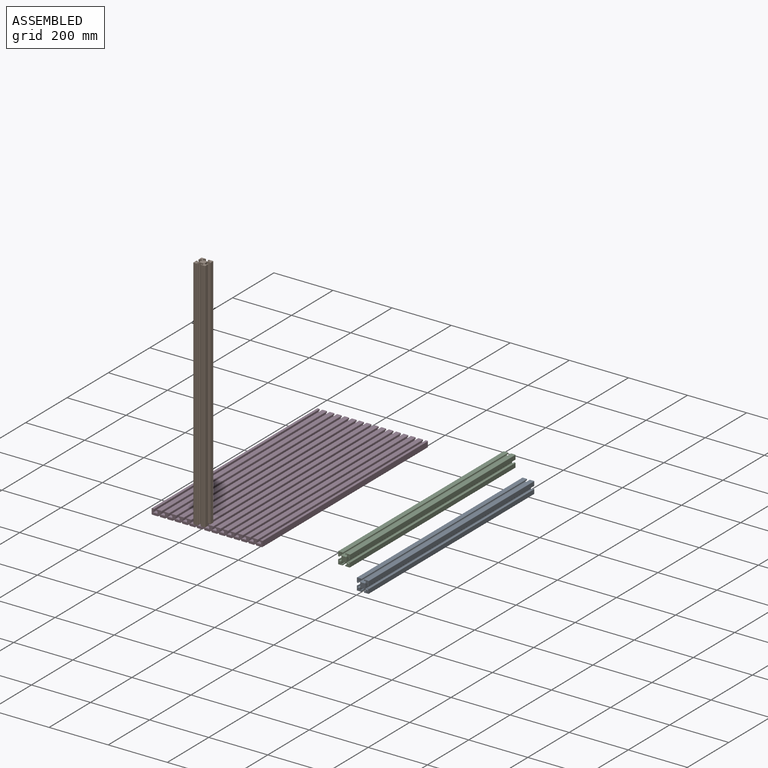
[diagram: assembled view]
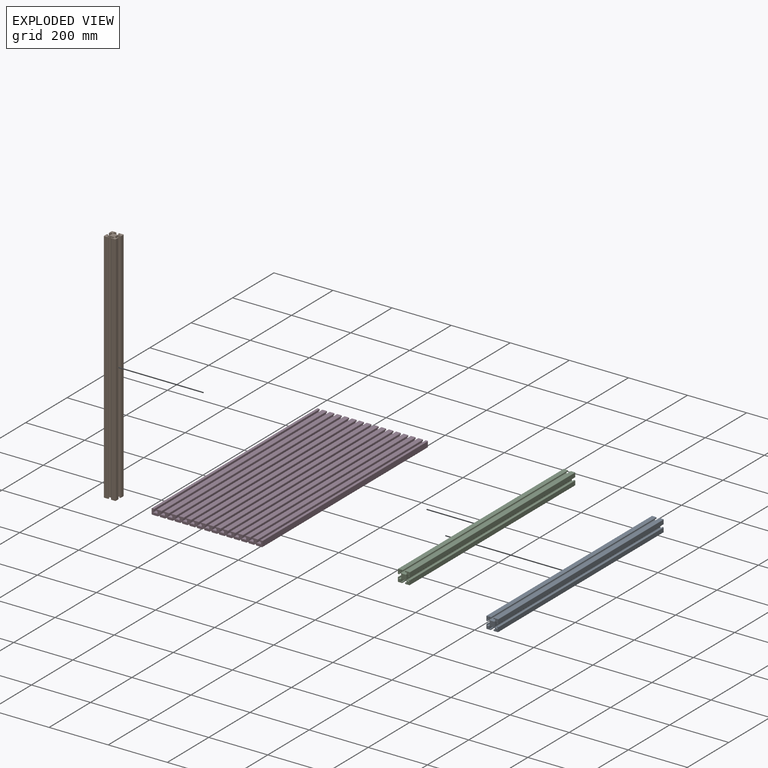
[diagram: exploded view]
GUIDED TOUR — MATED ASSEMBLY (Onshape document d3f55de6a1fc9f7a195c61f0, AutoMate assembly d3f55de6a1fc9f7a195c61f0_7cef2908c4491684f1a94280_d73506ea18576962724b9e15_default)

This assembly has 4 components, labeled P0..P3 below (a component is one placed occurrence of a part; the same part can appear more than once), held together by 1 mate. A mate is a constraint between two components; its type names the relative motion it leaves free:
  FASTENED — locks the two components together rigidly (no relative motion).
Axis/direction vectors are unit vectors and 'through' points are millimeter coordinates, both in the assembly's world frame.

MATES
  1. FASTENED "Fastened 1": P1 <-> P3, direction (0.000, 0.000, -1.000) through (-38.93, -798.97, 30.24) mm

ASSEMBLY ORDER
  1. P3 — the base component [order verified]
  2. P2 [order verified]
  3. P1 [order verified]
  4. P0 [order verified]
Order-tag legend:
  [order verified] — this step's position reverses a verified removal order: the component was checked to insert without passing through the ones already placed.

Of the 4 components, 1 carries the full construction recipe — the FeatureScript program that regenerates the part's solid from scratch; the rest are supplied as boundary geometry only.
Each toured component is shown spotlighted twice — in the assembled view, then in the exploded view, where a leader line traces a displaced component back to its assembled socket (saturated green if recipe-attached, orange if geometry-only; every other component desaturated gray) — followed by its recipe or geometry summary and the mates that hold it.
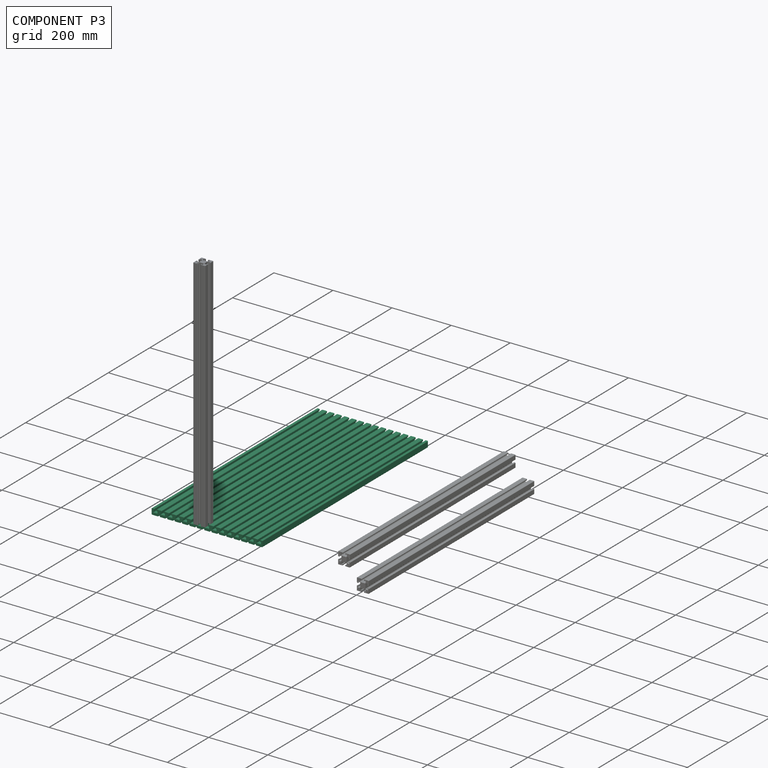
[diagram: component P3 — assembled]
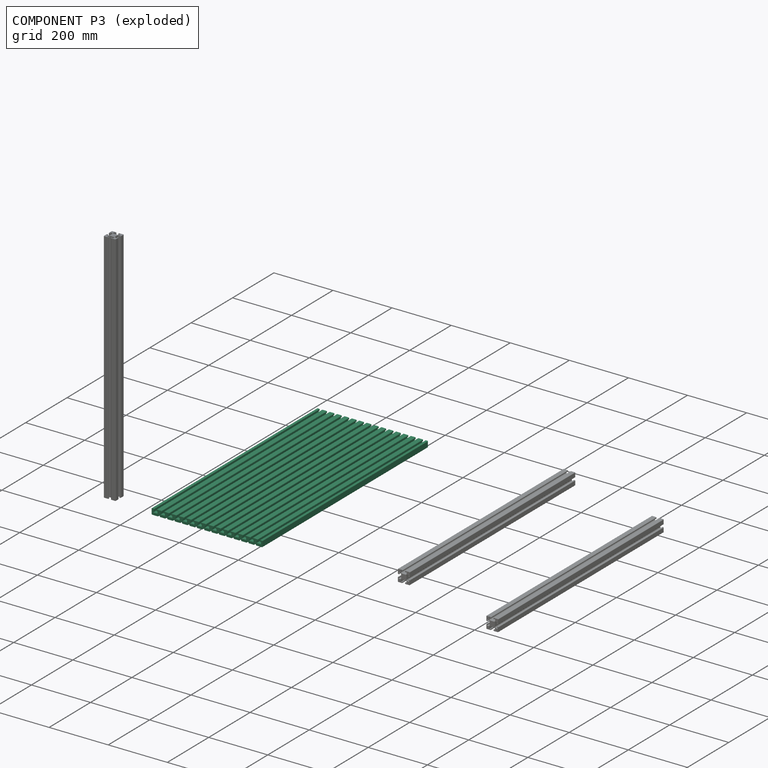
[diagram: component P3 — exploded]
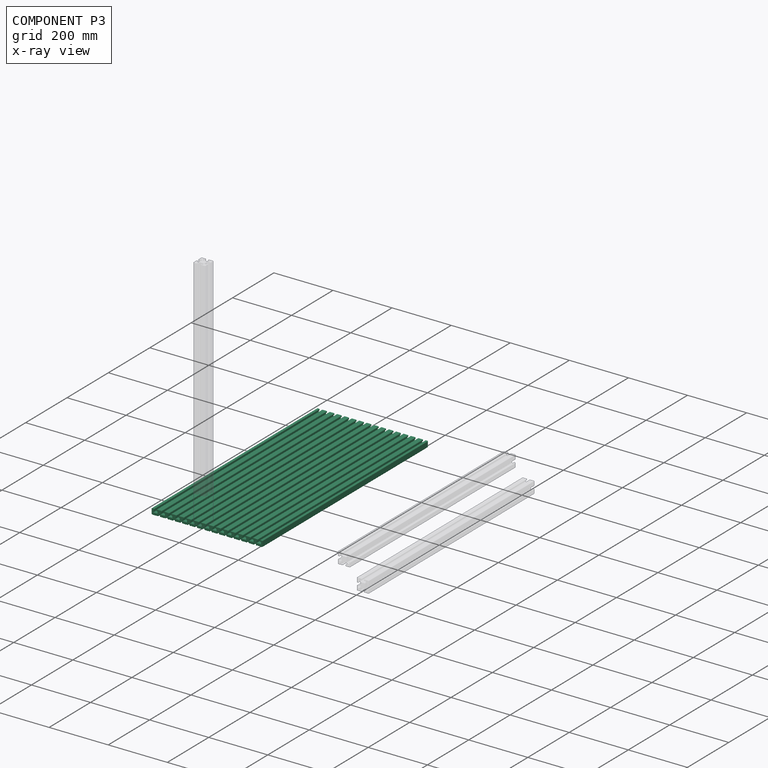
[diagram: component P3 — x-ray view]
COMPONENT P3 — recipe-attached (CADFS 00486400, mesh-verified: the recipe's output STEP matches this component's geometry to below the mesh-comparison resolution (tessellation chordal tolerance ~1.33 mm)).
Held by: FASTENED mate "Fastened 1" to P1.
Construction recipe (FeatureScript — the CAD program that rebuilds this solid; sketch coordinates are in the units given by the * unit suffixes, e.g. mm):

FeatureScript 1511;
import(path : "onshape/std/geometry.fs", version : "1511.0");
import(path : "onshape/std/common.fs", version : "1511.0");
const mm = millimeter;
const VERTEX = EntityType.VERTEX;
const EDGE = EntityType.EDGE;
const FACE = EntityType.FACE;
const BODY = EntityType.BODY;
function v(x, y){return vector(x, y);}
function OD(order){return orderDisambiguation(order);}
function OSD(set){return originalSetDisambiguation(set);}
function TD(topology){return topologyDisambiguation(topology);}
function TDD(query){return trueDependencyDisambiguation(query);}
function sQuery(a, b, c) {return sketchEntityQuery(a, b, c);}

annotation { "Feature Type Name" : "Feature", "Feature Type Description" : "" }
export const myFeature = defineFeature(function(context is Context, id is Id, definition is map)
    precondition{}
    {
        {
            var Q0;
            Q0=qCreatedBy(makeId("Front.planeOp"),FACE);
            var sketch = newSketch(context, id + "F0", { "sketchPlane" : qUnion([Q0])});
            skLineSegment(sketch, "E0", {"start": v(-186.5, -10) * mm, "end": v(-187.5, -9) * mm});
            skLineSegment(sketch, "E1", {"start": v(-187.5, -9) * mm, "end": v(-187.5, 9) * mm});
            skLineSegment(sketch, "E2", {"start": v(-187.5, 9) * mm, "end": v(-186.5, 10) * mm});
            skLineSegment(sketch, "E3", {"start": v(-186.5, 10) * mm, "end": v(-180.05, 10) * mm});
            skLineSegment(sketch, "E4", {"start": v(-179.05, 9) * mm, "end": v(-180.05, 10) * mm});
            skLineSegment(sketch, "E5", {"start": v(-179.05, 5) * mm, "end": v(-179.05, 9) * mm});
            skLineSegment(sketch, "E6", {"start": v(-182.25, 5) * mm, "end": v(-179.05, 5) * mm});
            skLineSegment(sketch, "E7", {"start": v(-182.25, -2) * mm, "end": v(-182.25, 5) * mm});
            skLineSegment(sketch, "E8", {"start": v(-167.75, -2) * mm, "end": v(-182.25, -2) * mm});
            skLineSegment(sketch, "E9", {"start": v(-167.75, 5) * mm, "end": v(-167.75, -2) * mm});
            skLineSegment(sketch, "E10", {"start": v(-170.95, 5) * mm, "end": v(-167.75, 5) * mm});
            skLineSegment(sketch, "E11", {"start": v(-170.95, 9) * mm, "end": v(-170.95, 5) * mm});
            skLineSegment(sketch, "E12", {"start": v(-169.95, 10) * mm, "end": v(-170.95, 9) * mm});
            skLineSegment(sketch, "E13", {"start": v(-169.95, 10) * mm, "end": v(-155.05, 10) * mm});
            skLineSegment(sketch, "E14", {"start": v(-154.05, 9) * mm, "end": v(-155.05, 10) * mm});
            skLineSegment(sketch, "E15", {"start": v(-154.05, 5) * mm, "end": v(-154.05, 9) * mm});
            skLineSegment(sketch, "E16", {"start": v(-157.25, 5) * mm, "end": v(-154.05, 5) * mm});
            skLineSegment(sketch, "E17", {"start": v(-157.25, -2) * mm, "end": v(-157.25, 5) * mm});
            skLineSegment(sketch, "E18", {"start": v(-142.75, -2) * mm, "end": v(-157.25, -2) * mm});
            skLineSegment(sketch, "E19", {"start": v(-142.75, 5) * mm, "end": v(-142.75, -2) * mm});
            skLineSegment(sketch, "E20", {"start": v(-145.95, 5) * mm, "end": v(-142.75, 5) * mm});
            skLineSegment(sketch, "E21", {"start": v(-145.95, 9) * mm, "end": v(-145.95, 5) * mm});
            skLineSegment(sketch, "E22", {"start": v(-144.95, 10) * mm, "end": v(-145.95, 9) * mm});
            skLineSegment(sketch, "E23", {"start": v(-144.95, 10) * mm, "end": v(-130.05, 10) * mm});
            skLineSegment(sketch, "E24", {"start": v(-129.05, 9) * mm, "end": v(-130.05, 10) * mm});
            skLineSegment(sketch, "E25", {"start": v(-129.05, 5) * mm, "end": v(-129.05, 9) * mm});
            skLineSegment(sketch, "E26", {"start": v(-132.25, 5) * mm, "end": v(-129.05, 5) * mm});
            skLineSegment(sketch, "E27", {"start": v(-132.25, -2) * mm, "end": v(-132.25, 5) * mm});
            skLineSegment(sketch, "E28", {"start": v(-117.75, -2) * mm, "end": v(-132.25, -2) * mm});
            skLineSegment(sketch, "E29", {"start": v(-117.75, 5) * mm, "end": v(-117.75, -2) * mm});
            skLineSegment(sketch, "E30", {"start": v(-120.95, 5) * mm, "end": v(-117.75, 5) * mm});
            skLineSegment(sketch, "E31", {"start": v(-120.95, 9) * mm, "end": v(-120.95, 5) * mm});
            skLineSegment(sketch, "E32", {"start": v(-119.95, 10) * mm, "end": v(-120.95, 9) * mm});
            skLineSegment(sketch, "E33", {"start": v(-119.95, 10) * mm, "end": v(-105.05, 10) * mm});
            skLineSegment(sketch, "E34", {"start": v(-104.05, 9) * mm, "end": v(-105.05, 10) * mm});
            skLineSegment(sketch, "E35", {"start": v(-104.05, 5) * mm, "end": v(-104.05, 9) * mm});
            skLineSegment(sketch, "E36", {"start": v(-107.25, 5) * mm, "end": v(-104.05, 5) * mm});
            skLineSegment(sketch, "E37", {"start": v(-107.25, -2) * mm, "end": v(-107.25, 5) * mm});
            skLineSegment(sketch, "E38", {"start": v(-92.75, -2) * mm, "end": v(-107.25, -2) * mm});
            skLineSegment(sketch, "E39", {"start": v(-92.75, 5) * mm, "end": v(-92.75, -2) * mm});
            skLineSegment(sketch, "E40", {"start": v(-95.95, 5) * mm, "end": v(-92.75, 5) * mm});
            skLineSegment(sketch, "E41", {"start": v(-95.95, 9) * mm, "end": v(-95.95, 5) * mm});
            skLineSegment(sketch, "E42", {"start": v(-94.95, 10) * mm, "end": v(-95.95, 9) * mm});
            skLineSegment(sketch, "E43", {"start": v(-94.95, 10) * mm, "end": v(-80.05, 10) * mm});
            skLineSegment(sketch, "E44", {"start": v(-79.05, 9) * mm, "end": v(-80.05, 10) * mm});
            skLineSegment(sketch, "E45", {"start": v(-79.05, 5) * mm, "end": v(-79.05, 9) * mm});
            skLineSegment(sketch, "E46", {"start": v(-82.25, 5) * mm, "end": v(-79.05, 5) * mm});
            skLineSegment(sketch, "E47", {"start": v(-82.25, -2) * mm, "end": v(-82.25, 5) * mm});
            skLineSegment(sketch, "E48", {"start": v(-67.75, -2) * mm, "end": v(-82.25, -2) * mm});
            skLineSegment(sketch, "E49", {"start": v(-67.75, 5) * mm, "end": v(-67.75, -2) * mm});
            skLineSegment(sketch, "E50", {"start": v(-70.95, 5) * mm, "end": v(-67.75, 5) * mm});
            skLineSegment(sketch, "E51", {"start": v(-70.95, 9) * mm, "end": v(-70.95, 5) * mm});
            skLineSegment(sketch, "E52", {"start": v(-69.95, 10) * mm, "end": v(-70.95, 9) * mm});
            skLineSegment(sketch, "E53", {"start": v(-69.95, 10) * mm, "end": v(-55.05, 10) * mm});
            skLineSegment(sketch, "E54", {"start": v(-54.05, 9) * mm, "end": v(-55.05, 10) * mm});
            skLineSegment(sketch, "E55", {"start": v(-54.05, 5) * mm, "end": v(-54.05, 9) * mm});
            skLineSegment(sketch, "E56", {"start": v(-57.25, 5) * mm, "end": v(-54.05, 5) * mm});
            skLineSegment(sketch, "E57", {"start": v(-57.25, -2) * mm, "end": v(-57.25, 5) * mm});
            skLineSegment(sketch, "E58", {"start": v(-42.75, -2) * mm, "end": v(-57.25, -2) * mm});
            skLineSegment(sketch, "E59", {"start": v(-42.75, 5) * mm, "end": v(-42.75, -2) * mm});
            skLineSegment(sketch, "E60", {"start": v(-45.95, 5) * mm, "end": v(-42.75, 5) * mm});
            skLineSegment(sketch, "E61", {"start": v(-45.95, 9) * mm, "end": v(-45.95, 5) * mm});
            skLineSegment(sketch, "E62", {"start": v(-44.95, 10) * mm, "end": v(-45.95, 9) * mm});
            skLineSegment(sketch, "E63", {"start": v(-44.95, 10) * mm, "end": v(-30.05, 10) * mm});
            skLineSegment(sketch, "E64", {"start": v(-29.05, 9) * mm, "end": v(-30.05, 10) * mm});
            skLineSegment(sketch, "E65", {"start": v(-32.25, 5) * mm, "end": v(-29.05, 5) * mm});
            skLineSegment(sketch, "E66", {"start": v(-32.25, -2) * mm, "end": v(-32.25, 5) * mm});
            skLineSegment(sketch, "E67", {"start": v(-17.75, -2) * mm, "end": v(-32.25, -2) * mm});
            skLineSegment(sketch, "E68", {"start": v(-17.75, 5) * mm, "end": v(-17.75, -2) * mm});
            skLineSegment(sketch, "E69", {"start": v(-20.95, 5) * mm, "end": v(-17.75, 5) * mm});
            skLineSegment(sketch, "E70", {"start": v(-20.95, 9) * mm, "end": v(-20.95, 5) * mm});
            skLineSegment(sketch, "E71", {"start": v(-19.95, 10) * mm, "end": v(-20.95, 9) * mm});
            skLineSegment(sketch, "E72", {"start": v(-19.95, 10) * mm, "end": v(-5.05, 10) * mm});
            skLineSegment(sketch, "E73", {"start": v(-4.05, 9) * mm, "end": v(-5.05, 10) * mm});
            skLineSegment(sketch, "E74", {"start": v(-4.05, 5) * mm, "end": v(-4.05, 9) * mm});
            skLineSegment(sketch, "E75", {"start": v(-7.25, 5) * mm, "end": v(-4.05, 5) * mm});
            skLineSegment(sketch, "E76", {"start": v(-7.25, -2) * mm, "end": v(-7.25, 5) * mm});
            skLineSegment(sketch, "E77", {"start": v(7.25, -2) * mm, "end": v(-7.25, -2) * mm});
            skLineSegment(sketch, "E78", {"start": v(7.25, -2) * mm, "end": v(7.25, 5) * mm});
            skLineSegment(sketch, "E79", {"start": v(7.25, 5) * mm, "end": v(4.05, 5) * mm});
            skLineSegment(sketch, "E80", {"start": v(4.05, 5) * mm, "end": v(4.05, 9) * mm});
            skLineSegment(sketch, "E81", {"start": v(4.05, 9) * mm, "end": v(5.05, 10) * mm});
            skLineSegment(sketch, "E82", {"start": v(19.95, 10) * mm, "end": v(20.95, 9) * mm});
            skLineSegment(sketch, "E83", {"start": v(20.95, 9) * mm, "end": v(20.95, 5) * mm});
            skLineSegment(sketch, "E84", {"start": v(20.95, 5) * mm, "end": v(17.75, 5) * mm});
            skLineSegment(sketch, "E85", {"start": v(17.75, 5) * mm, "end": v(17.75, -2) * mm});
            skLineSegment(sketch, "E86", {"start": v(17.75, -2) * mm, "end": v(32.25, -2) * mm});
            skLineSegment(sketch, "E87", {"start": v(32.25, -2) * mm, "end": v(32.25, 5) * mm});
            skLineSegment(sketch, "E88", {"start": v(32.25, 5) * mm, "end": v(29.05, 5) * mm});
            skLineSegment(sketch, "E89", {"start": v(29.05, 5) * mm, "end": v(29.05, 9) * mm});
            skLineSegment(sketch, "E90", {"start": v(29.05, 9) * mm, "end": v(30.05, 10) * mm});
            skLineSegment(sketch, "E91", {"start": v(44.95, 10) * mm, "end": v(45.95, 9) * mm});
            skLineSegment(sketch, "E92", {"start": v(45.95, 9) * mm, "end": v(45.95, 5) * mm});
            skLineSegment(sketch, "E93", {"start": v(45.95, 5) * mm, "end": v(42.75, 5) * mm});
            skLineSegment(sketch, "E94", {"start": v(42.75, 5) * mm, "end": v(42.75, -2) * mm});
            skLineSegment(sketch, "E95", {"start": v(42.75, -2) * mm, "end": v(57.25, -2) * mm});
            skLineSegment(sketch, "E96", {"start": v(57.25, -2) * mm, "end": v(57.25, 5) * mm});
            skLineSegment(sketch, "E97", {"start": v(57.25, 5) * mm, "end": v(54.05, 5) * mm});
            skLineSegment(sketch, "E98", {"start": v(54.05, 5) * mm, "end": v(54.05, 9) * mm});
            skLineSegment(sketch, "E99", {"start": v(54.05, 9) * mm, "end": v(55.05, 10) * mm});
            skLineSegment(sketch, "E100", {"start": v(69.95, 10) * mm, "end": v(70.95, 9) * mm});
            skLineSegment(sketch, "E101", {"start": v(70.95, 9) * mm, "end": v(70.95, 5) * mm});
            skLineSegment(sketch, "E102", {"start": v(70.95, 5) * mm, "end": v(67.75, 5) * mm});
            skLineSegment(sketch, "E103", {"start": v(67.75, 5) * mm, "end": v(67.75, -2) * mm});
            skLineSegment(sketch, "E104", {"start": v(67.75, -2) * mm, "end": v(82.25, -2) * mm});
            skLineSegment(sketch, "E105", {"start": v(82.25, -2) * mm, "end": v(82.25, 5) * mm});
            skLineSegment(sketch, "E106", {"start": v(82.25, 5) * mm, "end": v(79.05, 5) * mm});
            skLineSegment(sketch, "E107", {"start": v(79.05, 5) * mm, "end": v(79.05, 9) * mm});
            skLineSegment(sketch, "E108", {"start": v(79.05, 9) * mm, "end": v(80.05, 10) * mm});
            skLineSegment(sketch, "E109", {"start": v(94.95, 10) * mm, "end": v(95.95, 9) * mm});
            skLineSegment(sketch, "E110", {"start": v(95.95, 9) * mm, "end": v(95.95, 5) * mm});
            skLineSegment(sketch, "E111", {"start": v(95.95, 5) * mm, "end": v(92.75, 5) * mm});
            skLineSegment(sketch, "E112", {"start": v(92.75, 5) * mm, "end": v(92.75, -2) * mm});
            skLineSegment(sketch, "E113", {"start": v(92.75, -2) * mm, "end": v(107.25, -2) * mm});
            skLineSegment(sketch, "E114", {"start": v(107.25, -2) * mm, "end": v(107.25, 5) * mm});
            skLineSegment(sketch, "E115", {"start": v(107.25, 5) * mm, "end": v(104.05, 5) * mm});
            skLineSegment(sketch, "E116", {"start": v(104.05, 5) * mm, "end": v(104.05, 9) * mm});
            skLineSegment(sketch, "E117", {"start": v(104.05, 9) * mm, "end": v(105.05, 10) * mm});
            skLineSegment(sketch, "E118", {"start": v(119.95, 10) * mm, "end": v(120.95, 9) * mm});
            skLineSegment(sketch, "E119", {"start": v(120.95, 9) * mm, "end": v(120.95, 5) * mm});
            skLineSegment(sketch, "E120", {"start": v(120.95, 5) * mm, "end": v(117.75, 5) * mm});
            skLineSegment(sketch, "E121", {"start": v(117.75, 5) * mm, "end": v(117.75, -2) * mm});
            skLineSegment(sketch, "E122", {"start": v(117.75, -2) * mm, "end": v(132.25, -2) * mm});
            skLineSegment(sketch, "E123", {"start": v(132.25, -2) * mm, "end": v(132.25, 5) * mm});
            skLineSegment(sketch, "E124", {"start": v(132.25, 5) * mm, "end": v(129.05, 5) * mm});
            skLineSegment(sketch, "E125", {"start": v(129.05, 5) * mm, "end": v(129.05, 9) * mm});
            skLineSegment(sketch, "E126", {"start": v(129.05, 9) * mm, "end": v(130.05, 10) * mm});
            skLineSegment(sketch, "E127", {"start": v(144.95, 10) * mm, "end": v(145.95, 9) * mm});
            skLineSegment(sketch, "E128", {"start": v(145.95, 9) * mm, "end": v(145.95, 5) * mm});
            skLineSegment(sketch, "E129", {"start": v(145.95, 5) * mm, "end": v(142.75, 5) * mm});
            skLineSegment(sketch, "E130", {"start": v(142.75, 5) * mm, "end": v(142.75, -2) * mm});
            skLineSegment(sketch, "E131", {"start": v(142.75, -2) * mm, "end": v(157.25, -2) * mm});
            skLineSegment(sketch, "E132", {"start": v(157.25, -2) * mm, "end": v(157.25, 5) * mm});
            skLineSegment(sketch, "E133", {"start": v(157.25, 5) * mm, "end": v(154.05, 5) * mm});
            skLineSegment(sketch, "E134", {"start": v(154.05, 5) * mm, "end": v(154.05, 9) * mm});
            skLineSegment(sketch, "E135", {"start": v(154.05, 9) * mm, "end": v(155.05, 10) * mm});
            skLineSegment(sketch, "E136", {"start": v(169.95, 10) * mm, "end": v(170.95, 9) * mm});
            skLineSegment(sketch, "E137", {"start": v(170.95, 9) * mm, "end": v(170.95, 5) * mm});
            skLineSegment(sketch, "E138", {"start": v(170.95, 5) * mm, "end": v(167.75, 5) * mm});
            skLineSegment(sketch, "E139", {"start": v(167.75, 5) * mm, "end": v(167.75, -2) * mm});
            skLineSegment(sketch, "E140", {"start": v(167.75, -2) * mm, "end": v(182.25, -2) * mm});
            skLineSegment(sketch, "E141", {"start": v(182.25, -2) * mm, "end": v(182.25, 5) * mm});
            skLineSegment(sketch, "E142", {"start": v(182.25, 5) * mm, "end": v(179.05, 5) * mm});
            skLineSegment(sketch, "E143", {"start": v(179.05, 5) * mm, "end": v(179.05, 9) * mm});
            skLineSegment(sketch, "E144", {"start": v(179.05, 9) * mm, "end": v(180.05, 10) * mm});
            skArc(sketch, "E145", {"start": v(165.87, -9.56) * mm, "mid": v(165.94, -9.79) * mm, "end": v(166.04, -10) * mm});
            skLineSegment(sketch, "E146", {"start": v(165.87, -9.56) * mm, "end": v(165.53, -7.94) * mm});
            skArc(sketch, "E147", {"start": v(165.53, -7.94) * mm, "mid": v(165, -7.08) * mm, "end": v(164.06, -6.75) * mm});
            skLineSegment(sketch, "E148", {"start": v(164.06, -6.75) * mm, "end": v(160.94, -6.75) * mm});
            skArc(sketch, "E149", {"start": v(160.94, -6.75) * mm, "mid": v(160, -7.08) * mm, "end": v(159.47, -7.94) * mm});
            skLineSegment(sketch, "E150", {"start": v(159.47, -7.94) * mm, "end": v(159.13, -9.56) * mm});
            skArc(sketch, "E151", {"start": v(158.96, -10) * mm, "mid": v(159.06, -9.79) * mm, "end": v(159.13, -9.56) * mm});
            skArc(sketch, "E152", {"start": v(140.87, -9.56) * mm, "mid": v(140.94, -9.79) * mm, "end": v(141.04, -10) * mm});
            skLineSegment(sketch, "E153", {"start": v(140.87, -9.56) * mm, "end": v(140.53, -7.94) * mm});
            skArc(sketch, "E154", {"start": v(140.53, -7.94) * mm, "mid": v(140, -7.08) * mm, "end": v(139.06, -6.75) * mm});
            skLineSegment(sketch, "E155", {"start": v(139.06, -6.75) * mm, "end": v(135.94, -6.75) * mm});
            skArc(sketch, "E156", {"start": v(135.94, -6.75) * mm, "mid": v(135, -7.08) * mm, "end": v(134.47, -7.94) * mm});
            skLineSegment(sketch, "E157", {"start": v(134.47, -7.94) * mm, "end": v(134.13, -9.56) * mm});
            skArc(sketch, "E158", {"start": v(133.96, -10) * mm, "mid": v(134.06, -9.79) * mm, "end": v(134.13, -9.56) * mm});
            skArc(sketch, "E159", {"start": v(115.87, -9.56) * mm, "mid": v(115.94, -9.79) * mm, "end": v(116.04, -10) * mm});
            skLineSegment(sketch, "E160", {"start": v(115.87, -9.56) * mm, "end": v(115.53, -7.94) * mm});
            skArc(sketch, "E161", {"start": v(115.53, -7.94) * mm, "mid": v(115, -7.08) * mm, "end": v(114.06, -6.75) * mm});
            skLineSegment(sketch, "E162", {"start": v(114.06, -6.75) * mm, "end": v(110.94, -6.75) * mm});
            skArc(sketch, "E163", {"start": v(110.94, -6.75) * mm, "mid": v(110, -7.08) * mm, "end": v(109.47, -7.94) * mm});
            skLineSegment(sketch, "E164", {"start": v(109.47, -7.94) * mm, "end": v(109.13, -9.56) * mm});
            skArc(sketch, "E165", {"start": v(108.96, -10) * mm, "mid": v(109.06, -9.79) * mm, "end": v(109.13, -9.56) * mm});
            skArc(sketch, "E166", {"start": v(90.87, -9.56) * mm, "mid": v(90.94, -9.79) * mm, "end": v(91.04, -10) * mm});
            skLineSegment(sketch, "E167", {"start": v(90.87, -9.56) * mm, "end": v(90.53, -7.94) * mm});
            skArc(sketch, "E168", {"start": v(90.53, -7.94) * mm, "mid": v(90, -7.08) * mm, "end": v(89.06, -6.75) * mm});
            skLineSegment(sketch, "E169", {"start": v(89.06, -6.75) * mm, "end": v(85.94, -6.75) * mm});
            skArc(sketch, "E170", {"start": v(85.94, -6.75) * mm, "mid": v(85, -7.08) * mm, "end": v(84.47, -7.94) * mm});
            skLineSegment(sketch, "E171", {"start": v(84.47, -7.94) * mm, "end": v(84.13, -9.56) * mm});
            skArc(sketch, "E172", {"start": v(83.96, -10) * mm, "mid": v(84.06, -9.79) * mm, "end": v(84.13, -9.56) * mm});
            skArc(sketch, "E173", {"start": v(65.87, -9.56) * mm, "mid": v(65.94, -9.79) * mm, "end": v(66.04, -10) * mm});
            skLineSegment(sketch, "E174", {"start": v(65.87, -9.56) * mm, "end": v(65.53, -7.94) * mm});
            skArc(sketch, "E175", {"start": v(65.53, -7.94) * mm, "mid": v(65, -7.08) * mm, "end": v(64.06, -6.75) * mm});
            skLineSegment(sketch, "E176", {"start": v(64.06, -6.75) * mm, "end": v(60.94, -6.75) * mm});
            skArc(sketch, "E177", {"start": v(60.94, -6.75) * mm, "mid": v(60, -7.08) * mm, "end": v(59.47, -7.94) * mm});
            skLineSegment(sketch, "E178", {"start": v(59.47, -7.94) * mm, "end": v(59.13, -9.56) * mm});
            skArc(sketch, "E179", {"start": v(58.96, -10) * mm, "mid": v(59.06, -9.79) * mm, "end": v(59.13, -9.56) * mm});
            skArc(sketch, "E180", {"start": v(40.87, -9.56) * mm, "mid": v(40.94, -9.79) * mm, "end": v(41.04, -10) * mm});
            skLineSegment(sketch, "E181", {"start": v(40.87, -9.56) * mm, "end": v(40.53, -7.94) * mm});
            skArc(sketch, "E182", {"start": v(40.53, -7.94) * mm, "mid": v(40, -7.08) * mm, "end": v(39.06, -6.75) * mm});
            skLineSegment(sketch, "E183", {"start": v(39.06, -6.75) * mm, "end": v(35.94, -6.75) * mm});
            skArc(sketch, "E184", {"start": v(35.94, -6.75) * mm, "mid": v(35, -7.08) * mm, "end": v(34.47, -7.94) * mm});
            skLineSegment(sketch, "E185", {"start": v(34.47, -7.94) * mm, "end": v(34.13, -9.56) * mm});
            skArc(sketch, "E186", {"start": v(33.96, -10) * mm, "mid": v(34.06, -9.79) * mm, "end": v(34.13, -9.56) * mm});
            skArc(sketch, "E187", {"start": v(15.87, -9.56) * mm, "mid": v(15.94, -9.79) * mm, "end": v(16.04, -10) * mm});
            skLineSegment(sketch, "E188", {"start": v(15.87, -9.56) * mm, "end": v(15.53, -7.94) * mm});
            skArc(sketch, "E189", {"start": v(15.53, -7.94) * mm, "mid": v(15, -7.08) * mm, "end": v(14.06, -6.75) * mm});
            skLineSegment(sketch, "E190", {"start": v(14.06, -6.75) * mm, "end": v(10.94, -6.75) * mm});
            skArc(sketch, "E191", {"start": v(10.94, -6.75) * mm, "mid": v(10, -7.08) * mm, "end": v(9.47, -7.94) * mm});
            skLineSegment(sketch, "E192", {"start": v(9.47, -7.94) * mm, "end": v(9.13, -9.56) * mm});
            skArc(sketch, "E193", {"start": v(8.96, -10) * mm, "mid": v(9.06, -9.79) * mm, "end": v(9.13, -9.56) * mm});
            skArc(sketch, "E194", {"start": v(-9.13, -9.56) * mm, "mid": v(-9.06, -9.79) * mm, "end": v(-8.96, -10) * mm});
            skLineSegment(sketch, "E195", {"start": v(-9.13, -9.56) * mm, "end": v(-9.47, -7.94) * mm});
            skArc(sketch, "E196", {"start": v(-9.47, -7.94) * mm, "mid": v(-10, -7.08) * mm, "end": v(-10.94, -6.75) * mm});
            skLineSegment(sketch, "E197", {"start": v(-10.94, -6.75) * mm, "end": v(-14.06, -6.75) * mm});
            skArc(sketch, "E198", {"start": v(-14.06, -6.75) * mm, "mid": v(-15, -7.08) * mm, "end": v(-15.53, -7.94) * mm});
            skLineSegment(sketch, "E199", {"start": v(-15.53, -7.94) * mm, "end": v(-15.87, -9.56) * mm});
            skArc(sketch, "E200", {"start": v(-16.04, -10) * mm, "mid": v(-15.94, -9.79) * mm, "end": v(-15.87, -9.56) * mm});
            skArc(sketch, "E201", {"start": v(-34.13, -9.56) * mm, "mid": v(-34.06, -9.79) * mm, "end": v(-33.96, -10) * mm});
            skLineSegment(sketch, "E202", {"start": v(-34.13, -9.56) * mm, "end": v(-34.47, -7.94) * mm});
            skArc(sketch, "E203", {"start": v(-34.47, -7.94) * mm, "mid": v(-35, -7.08) * mm, "end": v(-35.94, -6.75) * mm});
            skLineSegment(sketch, "E204", {"start": v(-35.94, -6.75) * mm, "end": v(-39.06, -6.75) * mm});
            skArc(sketch, "E205", {"start": v(-39.06, -6.75) * mm, "mid": v(-40, -7.08) * mm, "end": v(-40.53, -7.94) * mm});
            skLineSegment(sketch, "E206", {"start": v(-40.53, -7.94) * mm, "end": v(-40.87, -9.56) * mm});
            skArc(sketch, "E207", {"start": v(-41.04, -10) * mm, "mid": v(-40.94, -9.79) * mm, "end": v(-40.87, -9.56) * mm});
            skArc(sketch, "E208", {"start": v(-59.13, -9.56) * mm, "mid": v(-59.06, -9.79) * mm, "end": v(-58.96, -10) * mm});
            skLineSegment(sketch, "E209", {"start": v(-59.13, -9.56) * mm, "end": v(-59.47, -7.94) * mm});
            skArc(sketch, "E210", {"start": v(-59.47, -7.94) * mm, "mid": v(-60, -7.08) * mm, "end": v(-60.94, -6.75) * mm});
            skLineSegment(sketch, "E211", {"start": v(-60.94, -6.75) * mm, "end": v(-64.06, -6.75) * mm});
            skArc(sketch, "E212", {"start": v(-64.06, -6.75) * mm, "mid": v(-65, -7.08) * mm, "end": v(-65.53, -7.94) * mm});
            skLineSegment(sketch, "E213", {"start": v(-65.53, -7.94) * mm, "end": v(-65.87, -9.56) * mm});
            skArc(sketch, "E214", {"start": v(-66.04, -10) * mm, "mid": v(-65.94, -9.79) * mm, "end": v(-65.87, -9.56) * mm});
            skArc(sketch, "E215", {"start": v(-84.13, -9.56) * mm, "mid": v(-84.06, -9.79) * mm, "end": v(-83.96, -10) * mm});
            skLineSegment(sketch, "E216", {"start": v(-84.13, -9.56) * mm, "end": v(-84.47, -7.94) * mm});
            skArc(sketch, "E217", {"start": v(-84.47, -7.94) * mm, "mid": v(-85, -7.08) * mm, "end": v(-85.94, -6.75) * mm});
            skLineSegment(sketch, "E218", {"start": v(-85.94, -6.75) * mm, "end": v(-89.06, -6.75) * mm});
            skArc(sketch, "E219", {"start": v(-89.06, -6.75) * mm, "mid": v(-90, -7.08) * mm, "end": v(-90.53, -7.94) * mm});
            skLineSegment(sketch, "E220", {"start": v(-90.53, -7.94) * mm, "end": v(-90.87, -9.56) * mm});
            skArc(sketch, "E221", {"start": v(-91.04, -10) * mm, "mid": v(-90.94, -9.79) * mm, "end": v(-90.87, -9.56) * mm});
            skArc(sketch, "E222", {"start": v(-109.13, -9.56) * mm, "mid": v(-109.06, -9.79) * mm, "end": v(-108.96, -10) * mm});
            skLineSegment(sketch, "E223", {"start": v(-109.13, -9.56) * mm, "end": v(-109.47, -7.94) * mm});
            skArc(sketch, "E224", {"start": v(-109.47, -7.94) * mm, "mid": v(-110, -7.08) * mm, "end": v(-110.94, -6.75) * mm});
            skLineSegment(sketch, "E225", {"start": v(-110.94, -6.75) * mm, "end": v(-114.06, -6.75) * mm});
            skArc(sketch, "E226", {"start": v(-114.06, -6.75) * mm, "mid": v(-115, -7.08) * mm, "end": v(-115.53, -7.94) * mm});
            skLineSegment(sketch, "E227", {"start": v(-115.53, -7.94) * mm, "end": v(-115.87, -9.56) * mm});
            skArc(sketch, "E228", {"start": v(-116.04, -10) * mm, "mid": v(-115.94, -9.79) * mm, "end": v(-115.87, -9.56) * mm});
            skArc(sketch, "E229", {"start": v(-134.13, -9.56) * mm, "mid": v(-134.06, -9.79) * mm, "end": v(-133.96, -10) * mm});
            skLineSegment(sketch, "E230", {"start": v(-134.13, -9.56) * mm, "end": v(-134.47, -7.94) * mm});
            skArc(sketch, "E231", {"start": v(-134.47, -7.94) * mm, "mid": v(-135, -7.08) * mm, "end": v(-135.94, -6.75) * mm});
            skLineSegment(sketch, "E232", {"start": v(-135.94, -6.75) * mm, "end": v(-139.06, -6.75) * mm});
            skArc(sketch, "E233", {"start": v(-139.06, -6.75) * mm, "mid": v(-140, -7.08) * mm, "end": v(-140.53, -7.94) * mm});
            skLineSegment(sketch, "E234", {"start": v(-140.53, -7.94) * mm, "end": v(-140.87, -9.56) * mm});
            skArc(sketch, "E235", {"start": v(-141.04, -10) * mm, "mid": v(-140.94, -9.79) * mm, "end": v(-140.87, -9.56) * mm});
            skArc(sketch, "E236", {"start": v(-159.13, -9.56) * mm, "mid": v(-159.06, -9.79) * mm, "end": v(-158.96, -10) * mm});
            skLineSegment(sketch, "E237", {"start": v(-159.13, -9.56) * mm, "end": v(-159.47, -7.94) * mm});
            skArc(sketch, "E238", {"start": v(-159.47, -7.94) * mm, "mid": v(-160, -7.08) * mm, "end": v(-160.94, -6.75) * mm});
            skLineSegment(sketch, "E239", {"start": v(-160.94, -6.75) * mm, "end": v(-164.06, -6.75) * mm});
            skArc(sketch, "E240", {"start": v(-164.06, -6.75) * mm, "mid": v(-165, -7.08) * mm, "end": v(-165.53, -7.94) * mm});
            skLineSegment(sketch, "E241", {"start": v(-165.53, -7.94) * mm, "end": v(-165.87, -9.56) * mm});
            skArc(sketch, "E242", {"start": v(-166.04, -10) * mm, "mid": v(-165.94, -9.79) * mm, "end": v(-165.87, -9.56) * mm});
            skLineSegment(sketch, "E243", {"start": v(-29.05, 5) * mm, "end": v(-29.05, 9) * mm});
            skLineSegment(sketch, "E244", {"start": v(166.04, -10) * mm, "end": v(186.5, -10) * mm});
            skLineSegment(sketch, "E245", {"start": v(186.5, -10) * mm, "end": v(187.5, -9) * mm});
            skLineSegment(sketch, "E246", {"start": v(187.5, -9) * mm, "end": v(187.5, 9) * mm});
            skLineSegment(sketch, "E247", {"start": v(187.5, 9) * mm, "end": v(186.5, 10) * mm});
            skLineSegment(sketch, "E248", {"start": v(19.95, 10) * mm, "end": v(5.05, 10) * mm});
            skLineSegment(sketch, "E249", {"start": v(186.5, 10) * mm, "end": v(180.05, 10) * mm});
            skLineSegment(sketch, "E250", {"start": v(169.95, 10) * mm, "end": v(155.05, 10) * mm});
            skLineSegment(sketch, "E251", {"start": v(144.95, 10) * mm, "end": v(130.05, 10) * mm});
            skLineSegment(sketch, "E252", {"start": v(119.95, 10) * mm, "end": v(105.05, 10) * mm});
            skLineSegment(sketch, "E253", {"start": v(94.95, 10) * mm, "end": v(80.05, 10) * mm});
            skLineSegment(sketch, "E254", {"start": v(69.95, 10) * mm, "end": v(55.05, 10) * mm});
            skLineSegment(sketch, "E255", {"start": v(44.95, 10) * mm, "end": v(30.05, 10) * mm});
            skLineSegment(sketch, "E256", {"start": v(141.04, -10) * mm, "end": v(158.96, -10) * mm});
            skLineSegment(sketch, "E257", {"start": v(116.04, -10) * mm, "end": v(133.96, -10) * mm});
            skLineSegment(sketch, "E258", {"start": v(91.04, -10) * mm, "end": v(108.96, -10) * mm});
            skLineSegment(sketch, "E259", {"start": v(66.04, -10) * mm, "end": v(83.96, -10) * mm});
            skLineSegment(sketch, "E260", {"start": v(41.04, -10) * mm, "end": v(58.96, -10) * mm});
            skLineSegment(sketch, "E261", {"start": v(16.04, -10) * mm, "end": v(33.96, -10) * mm});
            skLineSegment(sketch, "E262", {"start": v(-8.96, -10) * mm, "end": v(8.96, -10) * mm});
            skLineSegment(sketch, "E263", {"start": v(-33.96, -10) * mm, "end": v(-16.04, -10) * mm});
            skLineSegment(sketch, "E264", {"start": v(-58.96, -10) * mm, "end": v(-41.04, -10) * mm});
            skLineSegment(sketch, "E265", {"start": v(-83.96, -10) * mm, "end": v(-66.04, -10) * mm});
            skLineSegment(sketch, "E266", {"start": v(-108.96, -10) * mm, "end": v(-91.04, -10) * mm});
            skLineSegment(sketch, "E267", {"start": v(-133.96, -10) * mm, "end": v(-116.04, -10) * mm});
            skLineSegment(sketch, "E268", {"start": v(-158.96, -10) * mm, "end": v(-141.04, -10) * mm});
            skLineSegment(sketch, "E269", {"start": v(-186.5, -10) * mm, "end": v(-166.04, -10) * mm});
            skSolve(sketch);
        }
        {
            var Q0;
            Q0 = qSketchRegion(id + "F0", true);
            extrude(context, id + "F1", {"entities" : qUnion([Q0]), "depth" : 800 * mm});
        }
    });
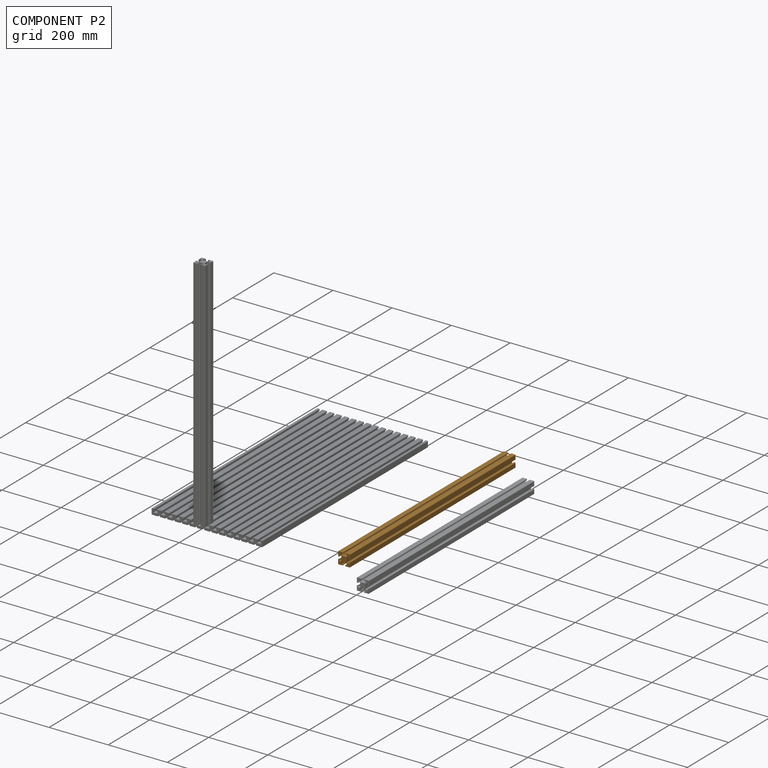
[diagram: component P2 — assembled]
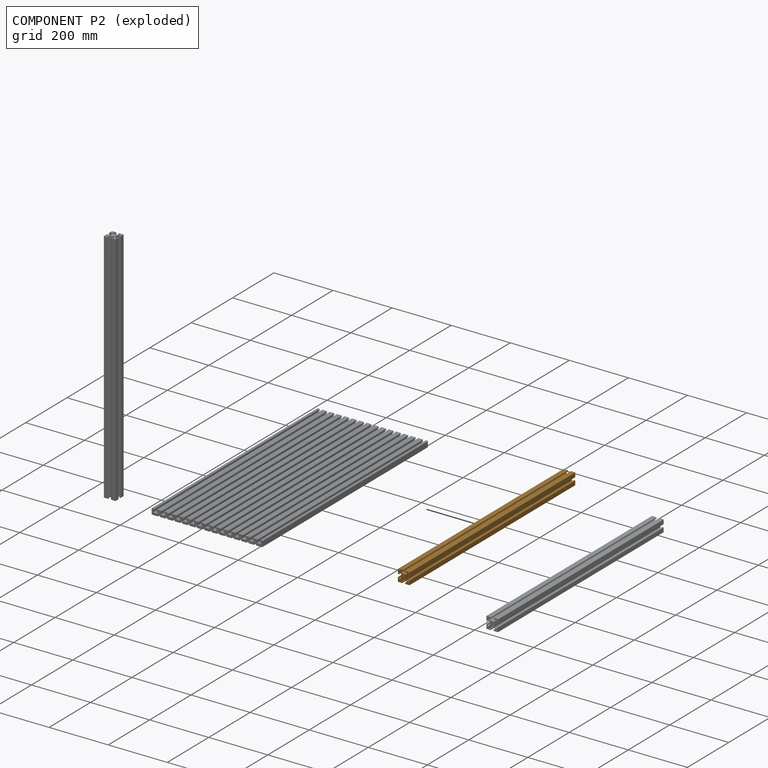
[diagram: component P2 — exploded]
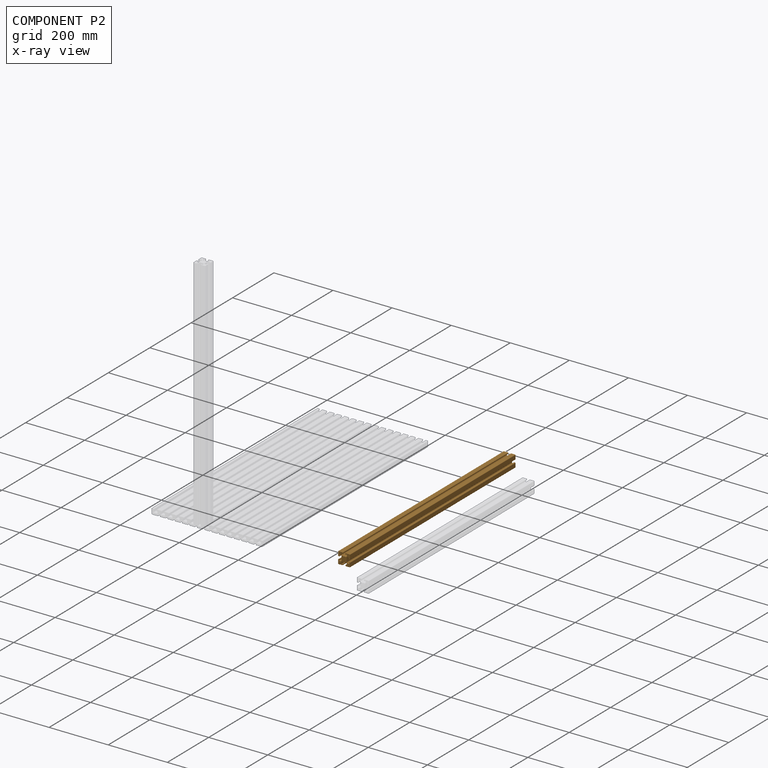
[diagram: component P2 — x-ray view]
COMPONENT P2 — geometry summary (no construction recipe available for this part):
  bounding box: 800.0 x 40.0 x 40.0 mm
  B-rep topology: 1 solid, 106 faces, 624 edges
  volume: 711451 mm^3 (56% of its bounding box)
  symmetry: 2-fold rotationally symmetric about the x axis; 4-fold rotationally symmetric about the y axis; 2-fold rotationally symmetric about the z axis; mirror-symmetric across its x mid-plane, y mid-plane, z mid-plane
Held by: no mates (free).
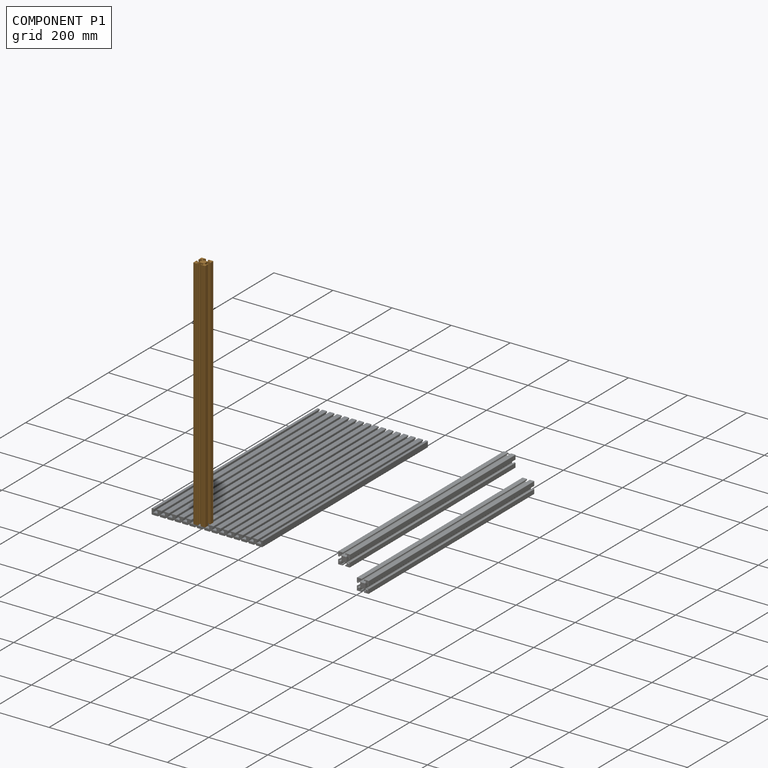
[diagram: component P1 — assembled]
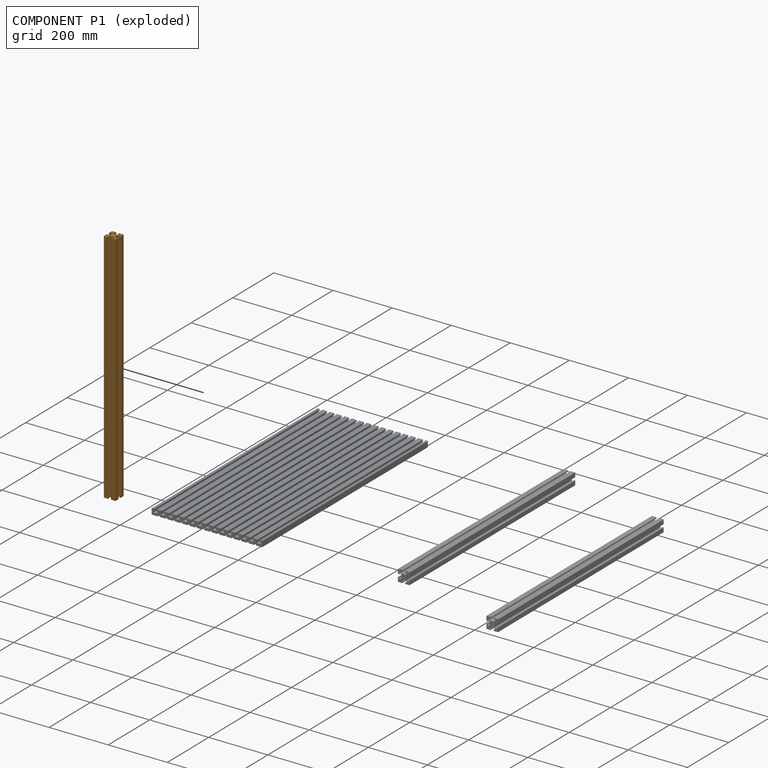
[diagram: component P1 — exploded]
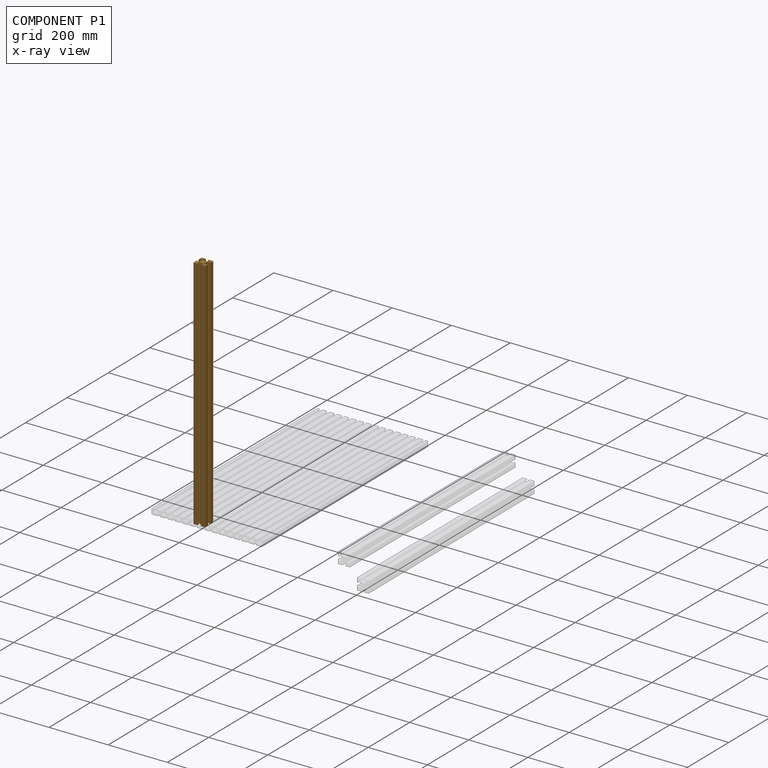
[diagram: component P1 — x-ray view]
COMPONENT P1 — geometry summary (no construction recipe available for this part):
  bounding box: 800.0 x 40.0 x 40.0 mm
  B-rep topology: 1 solid, 106 faces, 624 edges
  volume: 711451 mm^3 (56% of its bounding box)
  symmetry: 2-fold rotationally symmetric about the x axis; 4-fold rotationally symmetric about the y axis; 2-fold rotationally symmetric about the z axis; mirror-symmetric across its x mid-plane, y mid-plane, z mid-plane
Held by: FASTENED mate "Fastened 1" to P3.
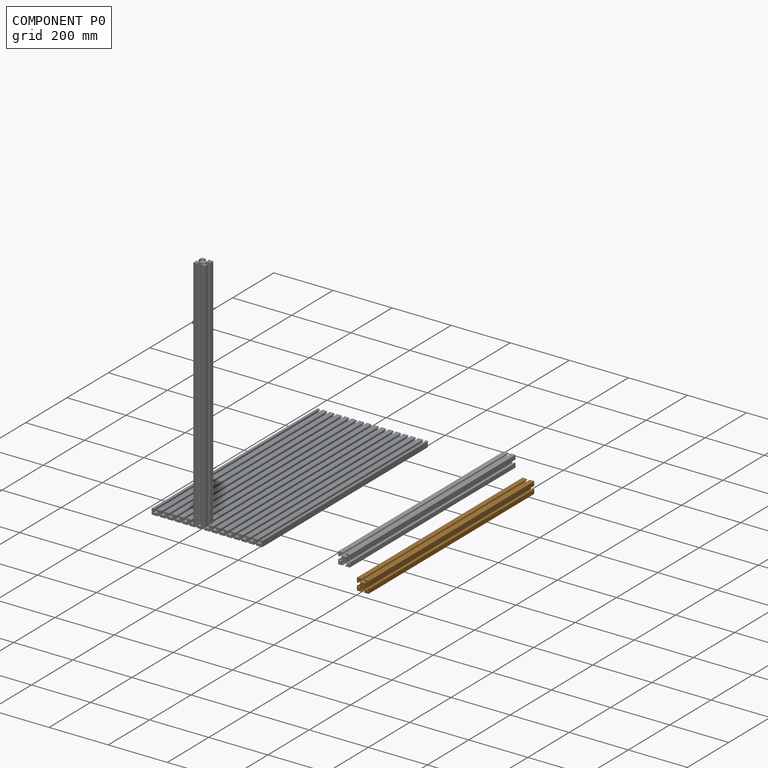
[diagram: component P0 — assembled]
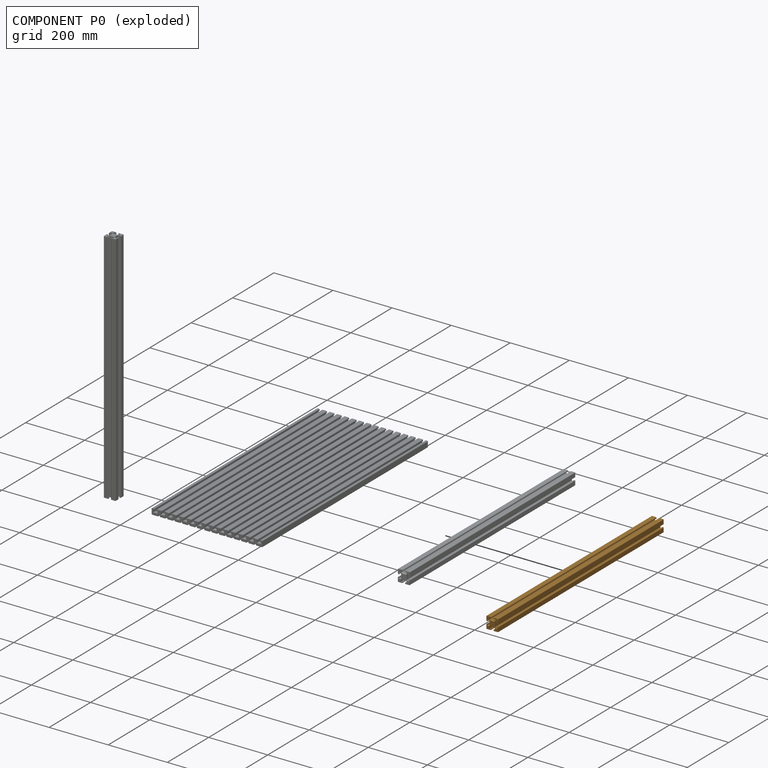
[diagram: component P0 — exploded]
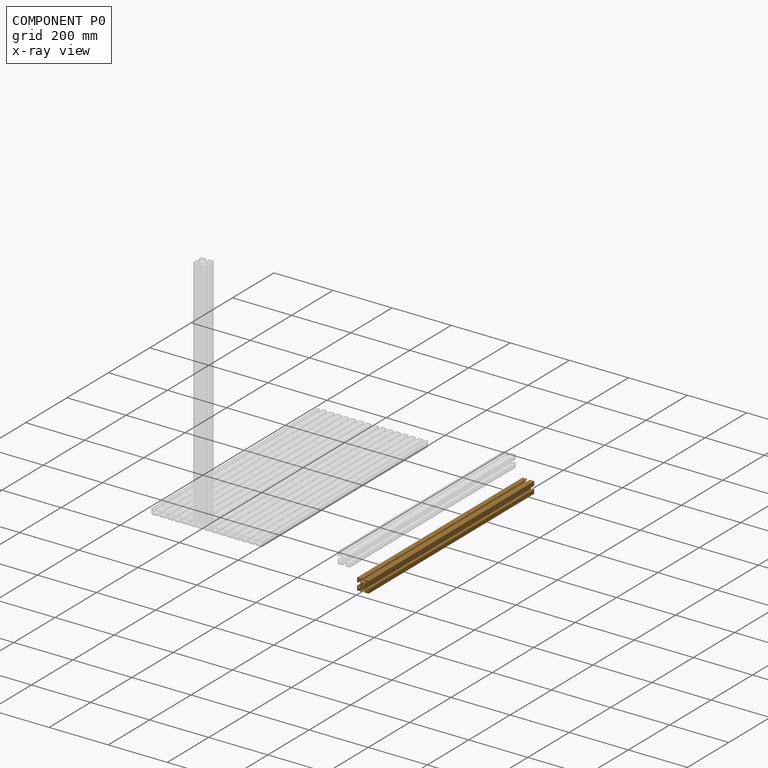
[diagram: component P0 — x-ray view]
COMPONENT P0 — geometry summary (no construction recipe available for this part):
  bounding box: 800.0 x 40.0 x 40.0 mm
  B-rep topology: 1 solid, 106 faces, 624 edges
  volume: 711451 mm^3 (56% of its bounding box)
  symmetry: 2-fold rotationally symmetric about the x axis; 4-fold rotationally symmetric about the y axis; 2-fold rotationally symmetric about the z axis; mirror-symmetric across its x mid-plane, y mid-plane, z mid-plane
Held by: no mates (free).
PROVENANCE & LICENSES
Assembly (occurrences, transforms, mates, per-part STEP geometry): AutoMate dataset, Zenodo record 7776208, CC0.
Construction recipes: CADFS (HuggingFace VladPyatov/CADFS, CC-BY-4.0, layered over the ABC dataset), FeatureScript reconstruction programs keyed by ABC model id.
Join: ABC meta listings map ABC model id -> Onshape documentId; within a shared document, parts are matched by geometric signature (bounding-box dims + volume at 0.1% relative tolerance, exact B-rep face/solid counts).
Verification: 1 of this assembly's 4 components carries a recipe attachment, and every attachment is mesh-verified: the CADFS STEP and the AutoMate member STEP were compared as meshes in their shared local frame (symmetric sampled-point-to-mesh distance); worst across the 1 attachment: below the mesh-comparison resolution (tessellation chordal tolerance ~1.33 mm) on a 884 mm part.
Renders: orthographic iso camera (az 35 / el 25); the floor grid conveys scale (grid pitch printed in each image; no ruler). In the exploded view each component is displaced by its stored offset vector: the offsets alone carry the explosion direction (mate normal/axis signs are not orientation cues and do not encode it), and separation distances are assigned per mate-chain, not proportionally to assembly-order depth.
